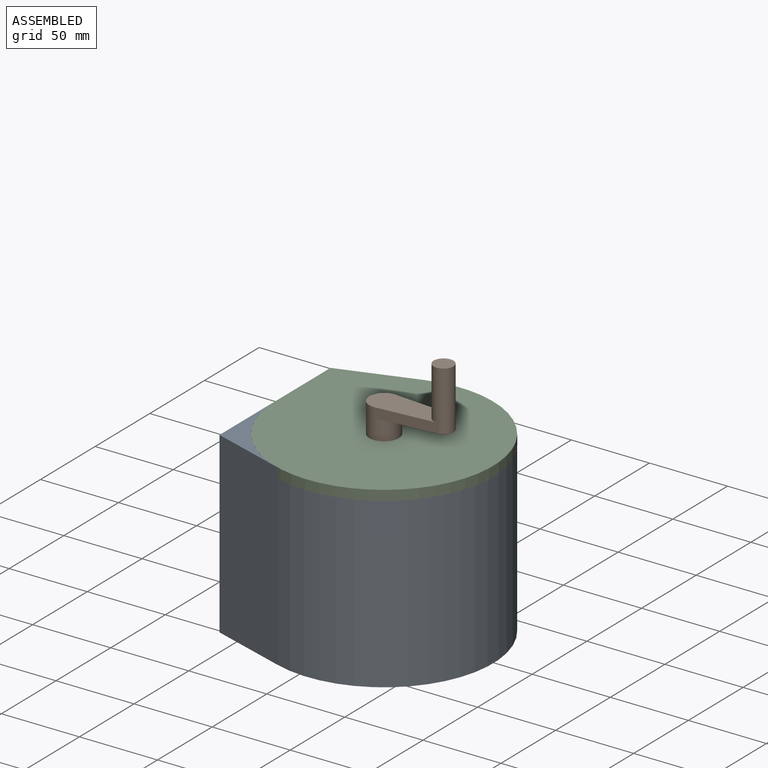
[diagram: assembled view]
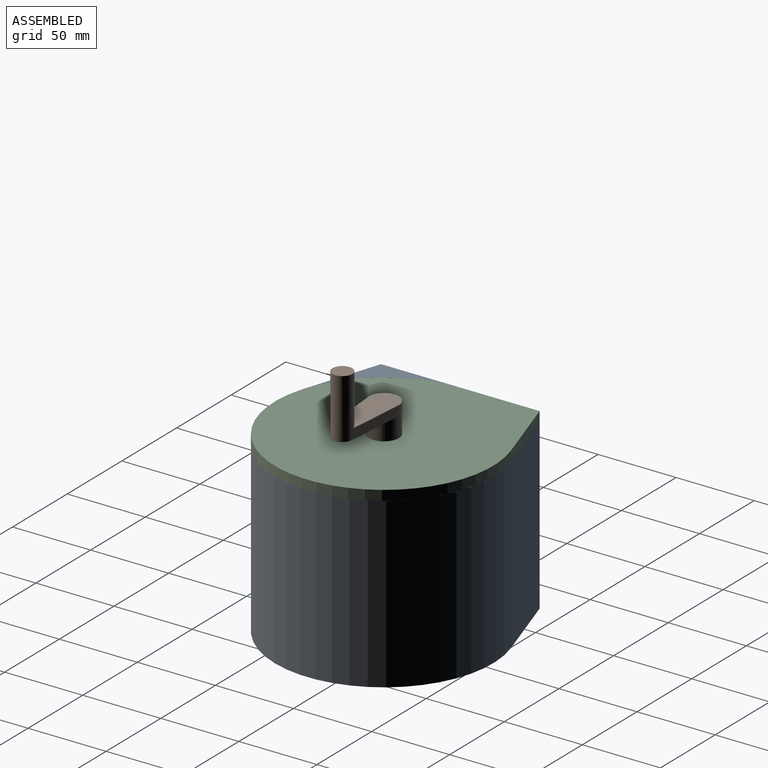
[diagram: assembled view, second angle]
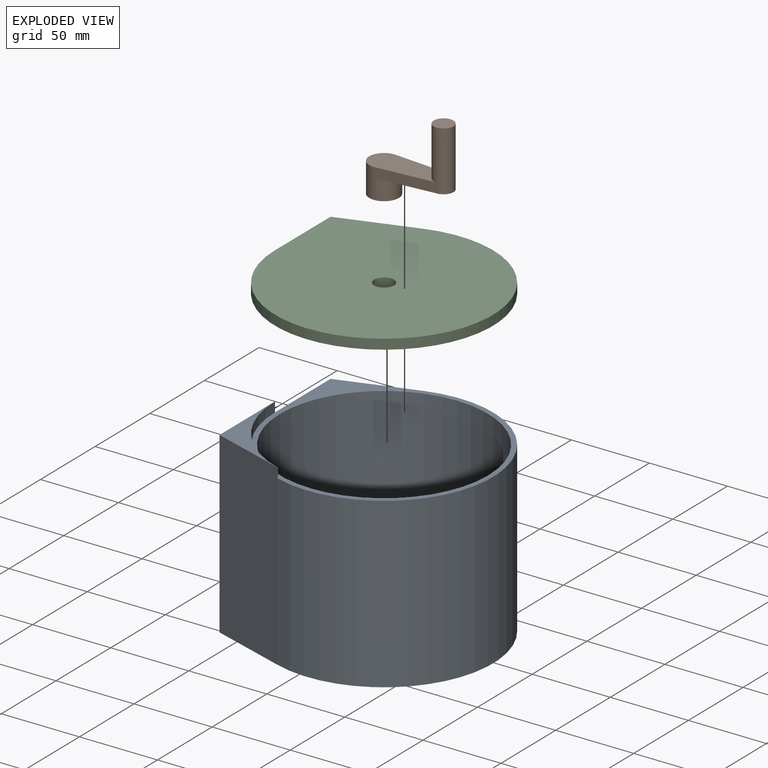
[diagram: exploded view]
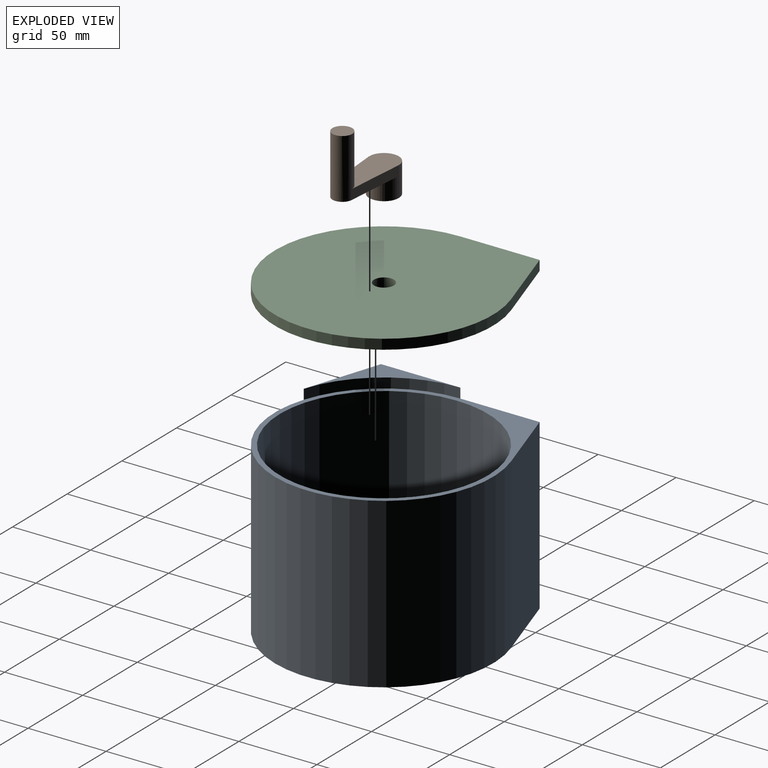
[diagram: exploded view, second angle]
ASSEMBLY  parts=3 mates=2
PART A: 10 faces, bbox 139.7x139.7x114.3 mm
  f0: plane 139.7x139.7mm, normal (0,0,1), area 1842.2mm2, adj f2,f3,f5,f6,f8
  f1: plane 133.35x133.35mm, normal (0,0,1), area 13966.1mm2, adj f6
  f2: plane 107.95x48.33mm, normal (-0.31,0.95,0), area 5483.9mm2, adj f0,f3,f5,f7
  f3: plane 114.3x101.6mm, normal (-1,0,0), area 11290.3mm2, adj f0,f2,f4,f7,f8,f9
  f4: plane 114.3x48.33mm, normal (-0.31,-0.95,0), area 5806.4mm2, adj f3,f5,f7,f8,f9
  f5: cylinder r=69.85mm len=139.7mm, axis (0,0,-1), area 28411.9mm2, adj f0,f2,f4,f7
  f6: cylinder r=66.67mm len=133.35mm, axis (0,0,-1), area 42563.4mm2, adj f0,f1
  f7: plane 139.7x139.7mm, normal (0,0,-1), area 16288.8mm2, adj f2,f3,f4,f5
  f8: cylinder r=69.85mm len=66.45mm, axis (0,0,-1), area 557.8mm2, adj f0,f3,f4,f9
  f9: plane 66.45x48.33mm, normal (0,0,1), area 480.5mm2, adj f3,f4,f8
PART B: 11 faces, bbox 54x19.1x50.8 mm
  f0: cylinder r=6.35mm len=38.1mm, axis (0,0,-1), area 1393.4mm2, adj f1,f2,f3,f5,f6
  f1: plane 12.7x12.7mm, normal (0,0,1), area 126.7mm2, adj f0
  f2: plane 42.87x18.79mm, normal (0,0,-1), area 525.7mm2, adj f0,f3,f5,f7
  f3: plane 38.1x19.05mm, normal (0.08,1,0), area 262.9mm2, adj f0,f2,f4,f6,f7,f9
  f4: cylinder r=9.53mm len=19.05mm, axis (0,0,-1), area 570mm2, adj f3,f5,f6,f9
  f5: plane 38.1x19.05mm, normal (0.08,-1,0), area 262.9mm2, adj f0,f2,f4,f6,f7,f9
  f6: plane 47.63x19.05mm, normal (0,0,1), area 684mm2, adj f0,f3,f4,f5
  f7: cylinder r=9.53mm len=18.79mm, axis (0,0,1), area 339.8mm2, adj f2,f3,f5,f9
  f8: cylinder r=6.35mm len=12.7mm, axis (0,0,1), area 506.7mm2, adj f9,f10
  f9: plane 19.05x19.05mm, normal (0,0,-1), area 158.3mm2, adj f3,f4,f5,f7,f8
  f10: plane 12.7x12.7mm, normal (0,0,-1), area 126.7mm2, adj f8
PART C: 6 faces, bbox 139.7x139.7x6.4 mm
  f0: plane 50.8x6.35mm, normal (-1,0,0), area 322.6mm2, adj f1,f2,f3,f4
  f1: cylinder r=69.85mm len=139.7mm, axis (0,0,-1), area 2229.1mm2, adj f0,f2,f3,f4
  f2: plane 48.33x15.65mm, normal (-0.31,0.95,0), area 322.6mm2, adj f0,f1,f3,f4
  f3: plane 139.7x139.7mm, normal (0,0,1), area 15681.7mm2, adj f0,f1,f2,f5
  f4: plane 139.7x139.7mm, normal (0,0,-1), area 15681.7mm2, adj f0,f1,f2,f5
  f5: cylinder r=6.35mm len=12.7mm, axis (0,0,1), area 253.4mm2, adj f3,f4
PLACE A t=(-17.41,60.78,-48.58)mm
PLACE B t=(-17.41,60.78,78.42)mm
PLACE C t=(-17.41,60.78,-48.58)mm
MATE fastened A.f0 <-> C.f4  axis (0,0,1) through (-87.26,111.58,59.37)mm
MATE fastened C.f1 <-> B.f4  axis (0,0,1) through (-17.41,60.78,65.72)mm
